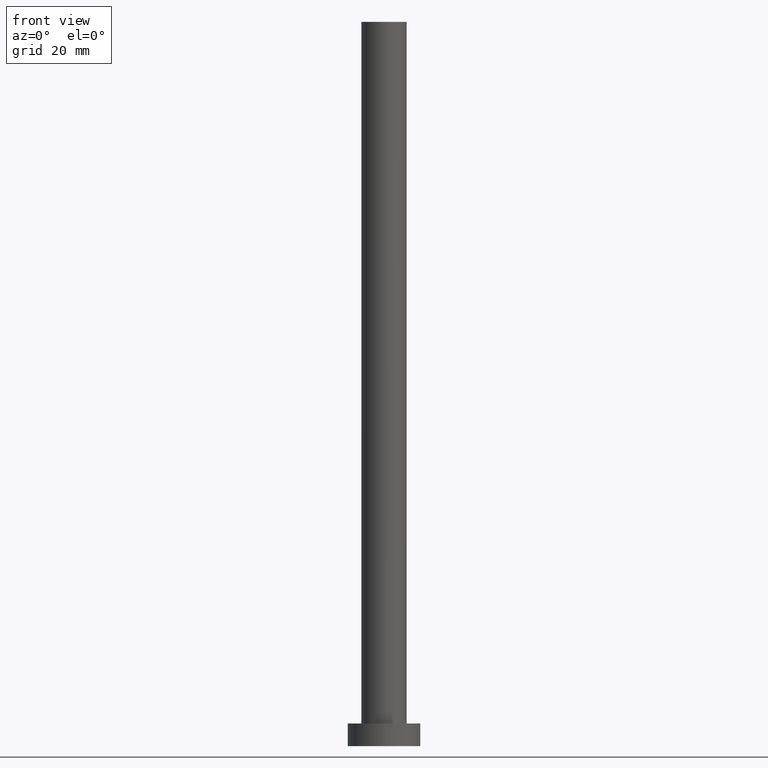
[diagram: clean part render]
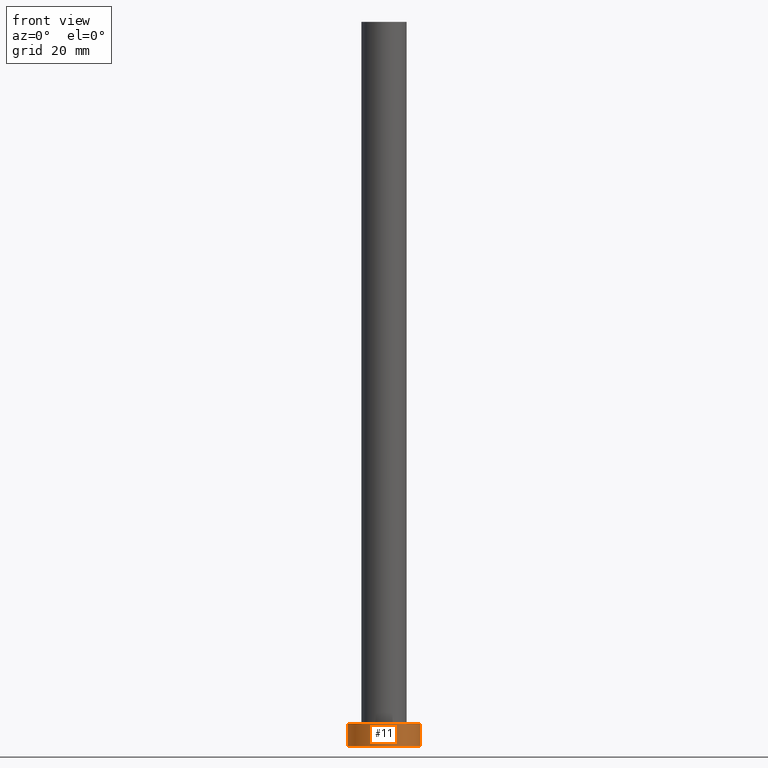
[diagram: same view with one face highlighted and labeled with its STEP entity id]
A machine part, front view. The second image highlights one B-rep face of the part: STEP entity #11.
In plain terms, the highlighted cylindrical surface (edge-blend (fillet) strip) has radius 8 mm, axis along (-0, -0, -1).
Its self-contained STEP definition (entity closure, byte-faithful):
#6 = ORIENTED_EDGE ( 'NONE', *, *, #233, .T. ) ;
#8 = VECTOR ( 'NONE', #219, 1000.000000000000000 ) ;
#11 = ADVANCED_FACE ( 'NONE', ( #191 ), #71, .T. ) ;
#12 = CARTESIAN_POINT ( 'NONE',  ( -8.000000000000000000, 0.000000000000000000, 0.000000000000000000 ) ) ;
#27 = ORIENTED_EDGE ( 'NONE', *, *, #189, .F. ) ;
#43 = AXIS2_PLACEMENT_3D ( 'NONE', #159, #135, #137 ) ;
#52 = CARTESIAN_POINT ( 'NONE',  ( 8.000000000000000000, 9.797174393178825657E-16, 0.000000000000000000 ) ) ;
#53 = VERTEX_POINT ( 'NONE', #12 ) ;
#68 = VERTEX_POINT ( 'NONE', #228 ) ;
#69 = DIRECTION ( 'NONE',  ( -1.000000000000000000, 0.000000000000000000, 0.000000000000000000 ) ) ;
#70 = VERTEX_POINT ( 'NONE', #52 ) ;
#71 = CYLINDRICAL_SURFACE ( 'NONE', #251, 8.000000000000000000 ) ;
#89 = CARTESIAN_POINT ( 'NONE',  ( 0.000000000000000000, 0.000000000000000000, 5.000000000000000000 ) ) ;
#97 = EDGE_CURVE ( 'NONE', #68, #70, #180, .T. ) ;
#99 = DIRECTION ( 'NONE',  ( 0.000000000000000000, 0.000000000000000000, 1.000000000000000000 ) ) ;
#119 = EDGE_CURVE ( 'NONE', #213, #53, #156, .T. ) ;
#135 = DIRECTION ( 'NONE',  ( 0.000000000000000000, 0.000000000000000000, 1.000000000000000000 ) ) ;
#137 = DIRECTION ( 'NONE',  ( 1.000000000000000000, 0.000000000000000000, 0.000000000000000000 ) ) ;
#138 = DIRECTION ( 'NONE',  ( 1.000000000000000000, 0.000000000000000000, 0.000000000000000000 ) ) ;
#140 = CARTESIAN_POINT ( 'NONE',  ( -8.000000000000000000, 0.000000000000000000, 5.000000000000000000 ) ) ;
#144 = ORIENTED_EDGE ( 'NONE', *, *, #97, .F. ) ;
#151 = EDGE_LOOP ( 'NONE', ( #144, #27, #174, #6 ) ) ;
#156 = LINE ( 'NONE', #140, #8 ) ;
#159 = CARTESIAN_POINT ( 'NONE',  ( 0.000000000000000000, 0.000000000000000000, 5.000000000000000000 ) ) ;
#174 = ORIENTED_EDGE ( 'NONE', *, *, #119, .T. ) ;
#177 = CIRCLE ( 'NONE', #43, 8.000000000000000000 ) ;
#180 = LINE ( 'NONE', #252, #192 ) ;
#189 = EDGE_CURVE ( 'NONE', #213, #68, #177, .T. ) ;
#191 = FACE_OUTER_BOUND ( 'NONE', #151, .T. ) ;
#192 = VECTOR ( 'NONE', #250, 1000.000000000000000 ) ;
#200 = CARTESIAN_POINT ( 'NONE',  ( 0.000000000000000000, 0.000000000000000000, 0.000000000000000000 ) ) ;
#213 = VERTEX_POINT ( 'NONE', #234 ) ;
#217 = CIRCLE ( 'NONE', #221, 8.000000000000000000 ) ;
#219 = DIRECTION ( 'NONE',  ( -0.000000000000000000, -0.000000000000000000, -1.000000000000000000 ) ) ;
#221 = AXIS2_PLACEMENT_3D ( 'NONE', #200, #99, #138 ) ;
#228 = CARTESIAN_POINT ( 'NONE',  ( 8.000000000000000000, 9.797174393178825657E-16, 5.000000000000000000 ) ) ;
#230 = DIRECTION ( 'NONE',  ( -0.000000000000000000, -0.000000000000000000, -1.000000000000000000 ) ) ;
#233 = EDGE_CURVE ( 'NONE', #53, #70, #217, .T. ) ;
#234 = CARTESIAN_POINT ( 'NONE',  ( -8.000000000000000000, 0.000000000000000000, 5.000000000000000000 ) ) ;
#250 = DIRECTION ( 'NONE',  ( -0.000000000000000000, -0.000000000000000000, -1.000000000000000000 ) ) ;
#251 = AXIS2_PLACEMENT_3D ( 'NONE', #89, #230, #69 ) ;
#252 = CARTESIAN_POINT ( 'NONE',  ( 8.000000000000000000, 9.797174393178825657E-16, 5.000000000000000000 ) ) ;